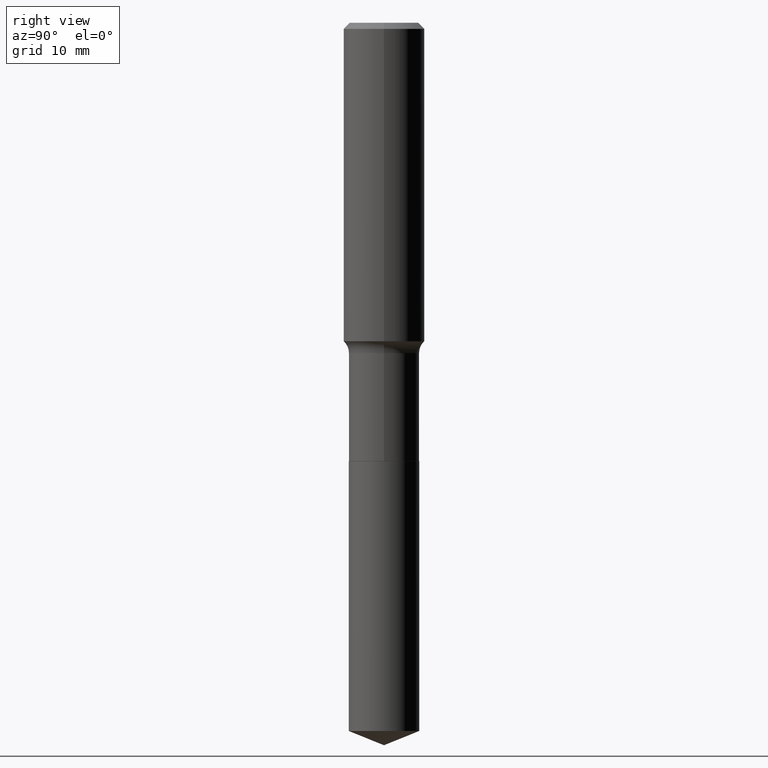
[diagram: clean part render]
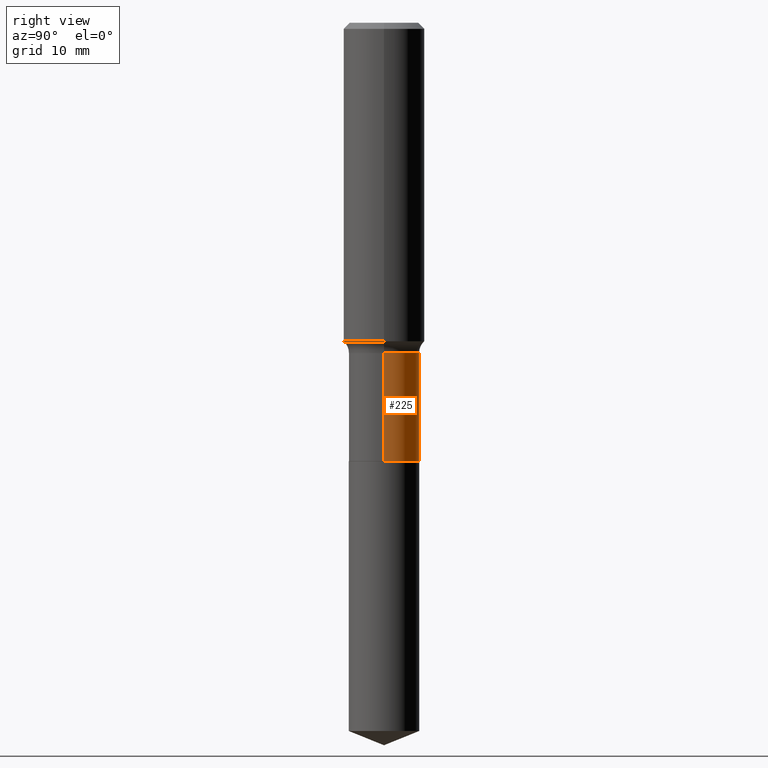
[diagram: same view with one face highlighted and labeled with its STEP entity id]
A machine part, right view. The second image highlights one B-rep face of the part: STEP entity #225.
In plain terms, the highlighted cylindrical surface (edge-blend (fillet) strip) has radius 4.3497 mm, axis along (-0, 0, 1).
Its self-contained STEP definition (entity closure, byte-faithful):
#2 = ORIENTED_EDGE ( 'NONE', *, *, #244, .T. ) ;
#15 = CARTESIAN_POINT ( 'NONE',  ( 3.917885574389206976E-29, -5.593702252960603405E-15, -1.602099999999999858 ) ) ;
#52 = CARTESIAN_POINT ( 'NONE',  ( 0.1712499999999999856, -1.195832358553773135E-15, 8.350452728550539064E-30 ) ) ;
#55 = DIRECTION ( 'NONE',  ( 1.000000000000000000, -6.982962677686266711E-15, 4.876176775795935793E-29 ) ) ;
#60 = CARTESIAN_POINT ( 'NONE',  ( 0.000000000000000000, 0.000000000000000000, 0.000000000000000000 ) ) ;
#66 = CARTESIAN_POINT ( 'NONE',  ( 5.197599400665889285E-29, -7.420794437577220826E-15, -2.125399999999999956 ) ) ;
#113 = DIRECTION ( 'NONE',  ( 1.000000000000000000, -6.982962677686265133E-15, 0.000000000000000000 ) ) ;
#136 = DIRECTION ( 'NONE',  ( 1.000000000000000000, -6.982962677686268288E-15, 0.000000000000000000 ) ) ;
#144 = EDGE_CURVE ( 'NONE', #248, #425, #397, .T. ) ;
#163 = CYLINDRICAL_SURFACE ( 'NONE', #229, 0.1712499999999999856 ) ;
#171 = CARTESIAN_POINT ( 'NONE',  ( 0.1712500000000000133, -8.616626796130994158E-15, -2.125399999999999956 ) ) ;
#181 = CARTESIAN_POINT ( 'NONE',  ( -0.1712500000000000133, -5.290443910279740453E-15, -2.125399999999999956 ) ) ;
#184 = DIRECTION ( 'NONE',  ( -2.445468806185136597E-29, 3.491481338843145583E-15, 1.000000000000000000 ) ) ;
#197 = VECTOR ( 'NONE', #209, 39.37007874015748143 ) ;
#209 = DIRECTION ( 'NONE',  ( -2.445468806185136877E-29, 3.491481338843145188E-15, 1.000000000000000000 ) ) ;
#213 = CARTESIAN_POINT ( 'NONE',  ( 0.1712499999999999578, -6.789534611514375948E-15, -1.602099999999999858 ) ) ;
#225 = ADVANCED_FACE ( 'NONE', ( #329 ), #163, .T. ) ;
#229 = AXIS2_PLACEMENT_3D ( 'NONE', #60, #318, #55 ) ;
#244 = EDGE_CURVE ( 'NONE', #435, #425, #390, .T. ) ;
#246 = DIRECTION ( 'NONE',  ( -2.445468806185136597E-29, 3.491481338843145583E-15, 1.000000000000000000 ) ) ;
#248 = VERTEX_POINT ( 'NONE', #213 ) ;
#297 = CARTESIAN_POINT ( 'NONE',  ( -0.1712499999999999578, -5.290443910279740453E-15, -1.602099999999999858 ) ) ;
#302 = VERTEX_POINT ( 'NONE', #171 ) ;
#303 = ORIENTED_EDGE ( 'NONE', *, *, #350, .F. ) ;
#310 = ORIENTED_EDGE ( 'NONE', *, *, #418, .T. ) ;
#318 = DIRECTION ( 'NONE',  ( -2.445468806185136597E-29, 3.491481338843145583E-15, 1.000000000000000000 ) ) ;
#327 = ORIENTED_EDGE ( 'NONE', *, *, #144, .F. ) ;
#329 = FACE_OUTER_BOUND ( 'NONE', #385, .T. ) ;
#331 = VECTOR ( 'NONE', #402, 39.37007874015748143 ) ;
#342 = AXIS2_PLACEMENT_3D ( 'NONE', #66, #184, #136 ) ;
#350 = EDGE_CURVE ( 'NONE', #302, #248, #444, .T. ) ;
#361 = CARTESIAN_POINT ( 'NONE',  ( -0.1712499999999999856, 1.216804434989171466E-15, -8.423676342061525262E-30 ) ) ;
#378 = AXIS2_PLACEMENT_3D ( 'NONE', #15, #246, #113 ) ;
#385 = EDGE_LOOP ( 'NONE', ( #310, #2, #327, #303 ) ) ;
#390 = LINE ( 'NONE', #361, #197 ) ;
#397 = CIRCLE ( 'NONE', #378, 0.1712499999999999578 ) ;
#402 = DIRECTION ( 'NONE',  ( -2.445468806185136877E-29, 3.491481338843145188E-15, 1.000000000000000000 ) ) ;
#414 = CIRCLE ( 'NONE', #342, 0.1712500000000000133 ) ;
#418 = EDGE_CURVE ( 'NONE', #302, #435, #414, .T. ) ;
#425 = VERTEX_POINT ( 'NONE', #297 ) ;
#435 = VERTEX_POINT ( 'NONE', #181 ) ;
#444 = LINE ( 'NONE', #52, #331 ) ;